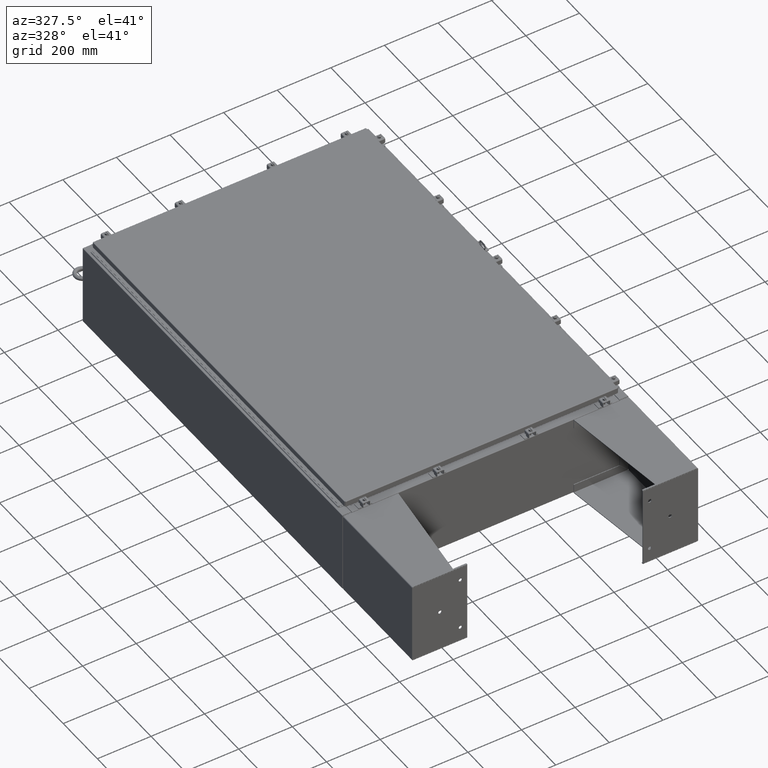
[diagram: clean part render]
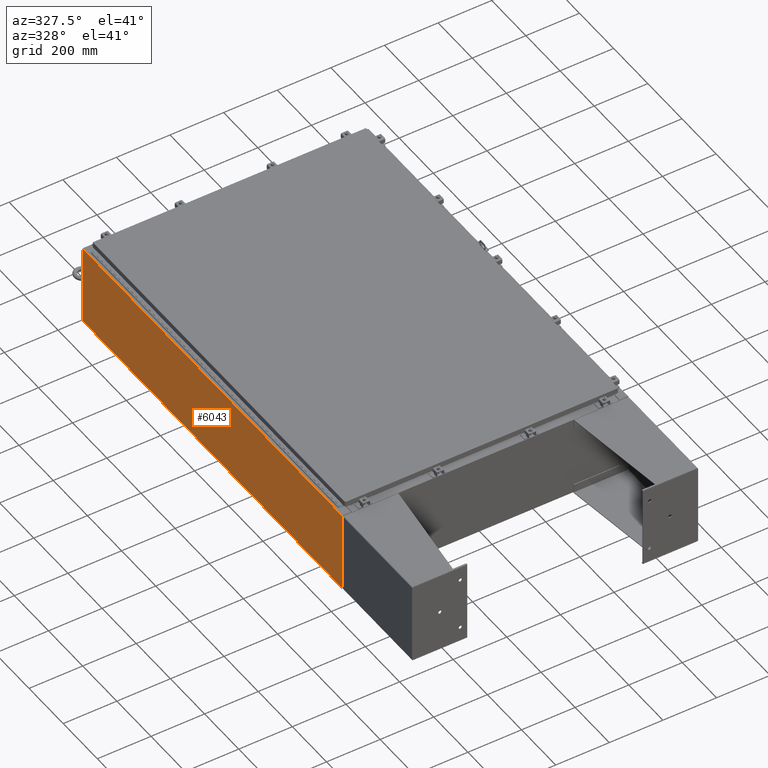
[diagram: same view with one face highlighted and labeled with its STEP entity id]
A machine part, auxiliary view. The second image highlights one B-rep face of the part: STEP entity #6043.
In plain terms, the highlighted planar face has unit normal (1, 0, 0).
Its self-contained STEP definition (entity closure, byte-faithful):
#134 = CARTESIAN_POINT ( 'NONE',  ( -21.00000000000000400, 29.92530000000000000, -7.723170125390786300E-014 ) ) ;
#2884 = EDGE_CURVE ( 'NONE', #39319, #61724, #9050, .T. ) ;
#2940 = CARTESIAN_POINT ( 'NONE',  ( -21.00000000000000400, -29.92530000000000400, -7.723170125390786300E-014 ) ) ;
#3074 = DIRECTION ( 'NONE',  ( -9.509888230953479100E-046, 1.000000000000000000, -3.531521666798127500E-060 ) ) ;
#3660 = CARTESIAN_POINT ( 'NONE',  ( -21.00000000000000400, 29.92530000000000000, 0.01299999999999764400 ) ) ;
#3785 = AXIS2_PLACEMENT_3D ( 'NONE', #4963, #44199, #4214 ) ;
#4024 = CARTESIAN_POINT ( 'NONE',  ( -21.00000000000005000, -29.92530000000000700, 11.83760000000000000 ) ) ;
#4214 = DIRECTION ( 'NONE',  ( 3.665280361804584200E-015, 0.0000000000000000000, -1.000000000000000000 ) ) ;
#4963 = CARTESIAN_POINT ( 'NONE',  ( -21.00000000000000400, 0.0000000000000000000, -7.723170125390786300E-014 ) ) ;
#6043 = ADVANCED_FACE ( 'NONE', ( #58682 ), #11960, .F. ) ;
#8435 = VERTEX_POINT ( 'NONE', #52785 ) ;
#9050 = LINE ( 'NONE', #3660, #35304 ) ;
#11270 = ORIENTED_EDGE ( 'NONE', *, *, #2884, .F. ) ;
#11960 = PLANE ( 'NONE',  #3785 ) ;
#14313 = EDGE_CURVE ( 'NONE', #39319, #8435, #63738, .T. ) ;
#23597 = CARTESIAN_POINT ( 'NONE',  ( -21.00000000000000400, -29.92530000000000400, 0.01299999999999764400 ) ) ;
#28409 = LINE ( 'NONE', #134, #54579 ) ;
#31554 = DIRECTION ( 'NONE',  ( 3.665280361804584200E-015, -2.676795568328568700E-032, -1.000000000000000000 ) ) ;
#35304 = VECTOR ( 'NONE', #3074, 39.37007874015748100 ) ;
#38068 = CARTESIAN_POINT ( 'NONE',  ( -21.00000000000000400, 29.92530000000000000, 0.01299999999999764900 ) ) ;
#39319 = VERTEX_POINT ( 'NONE', #23597 ) ;
#43531 = DIRECTION ( 'NONE',  ( -3.665280361804584200E-015, 0.0000000000000000000, 1.000000000000000000 ) ) ;
#43707 = EDGE_CURVE ( 'NONE', #8435, #53544, #53807, .T. ) ;
#43912 = EDGE_CURVE ( 'NONE', #53544, #61724, #28409, .T. ) ;
#44199 = DIRECTION ( 'NONE',  ( 1.000000000000000000, 9.509888230953479100E-046, 3.665280361804584200E-015 ) ) ;
#45957 = DIRECTION ( 'NONE',  ( 0.0000000000000000000, 1.000000000000000000, 0.0000000000000000000 ) ) ;
#47659 = ORIENTED_EDGE ( 'NONE', *, *, #43707, .T. ) ;
#48137 = ORIENTED_EDGE ( 'NONE', *, *, #43912, .T. ) ;
#49906 = VECTOR ( 'NONE', #43531, 39.37007874015748100 ) ;
#52785 = CARTESIAN_POINT ( 'NONE',  ( -21.00000000000005000, -29.92530000000000400, 11.83760000000000000 ) ) ;
#53544 = VERTEX_POINT ( 'NONE', #64735 ) ;
#53807 = LINE ( 'NONE', #4024, #66020 ) ;
#54579 = VECTOR ( 'NONE', #31554, 39.37007874015748100 ) ;
#58682 = FACE_OUTER_BOUND ( 'NONE', #65856, .T. ) ;
#61724 = VERTEX_POINT ( 'NONE', #38068 ) ;
#63738 = LINE ( 'NONE', #2940, #49906 ) ;
#64735 = CARTESIAN_POINT ( 'NONE',  ( -21.00000000000005000, 29.92530000000000000, 11.83760000000000000 ) ) ;
#65856 = EDGE_LOOP ( 'NONE', ( #47659, #48137, #11270, #66934 ) ) ;
#66020 = VECTOR ( 'NONE', #45957, 39.37007874015748100 ) ;
#66934 = ORIENTED_EDGE ( 'NONE', *, *, #14313, .T. ) ;